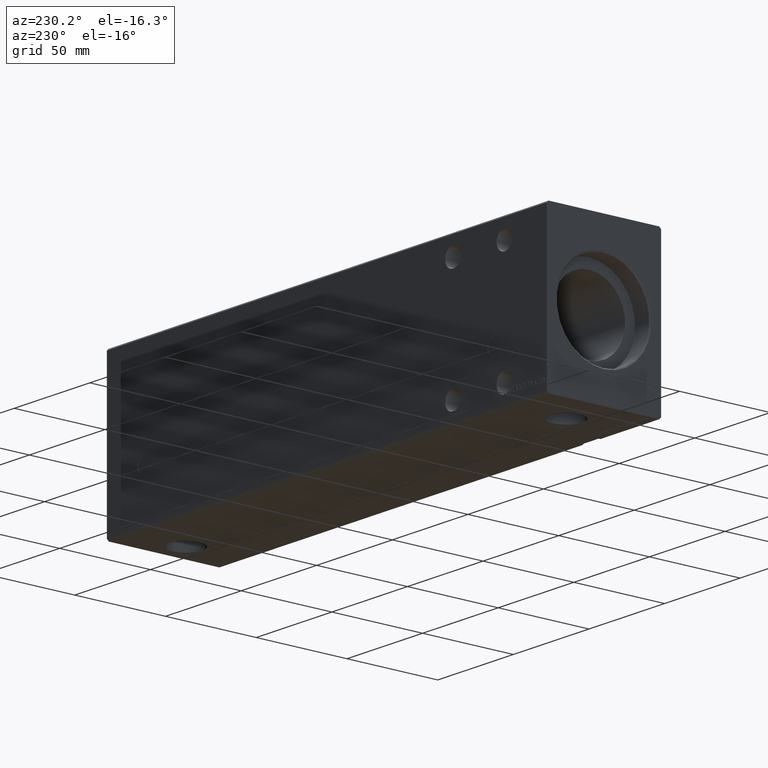
[diagram: clean part render]
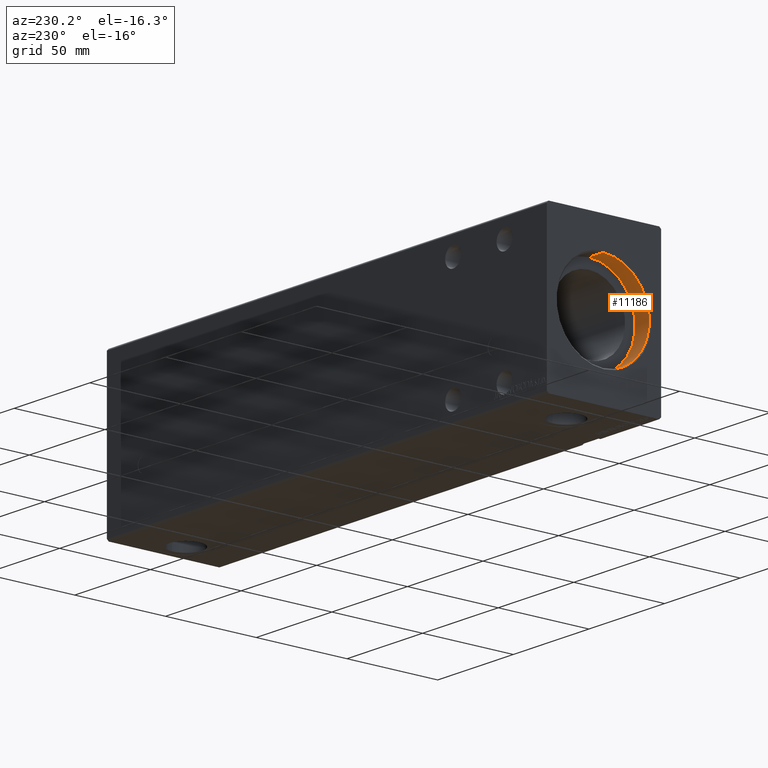
[diagram: same view with one face highlighted and labeled with its STEP entity id]
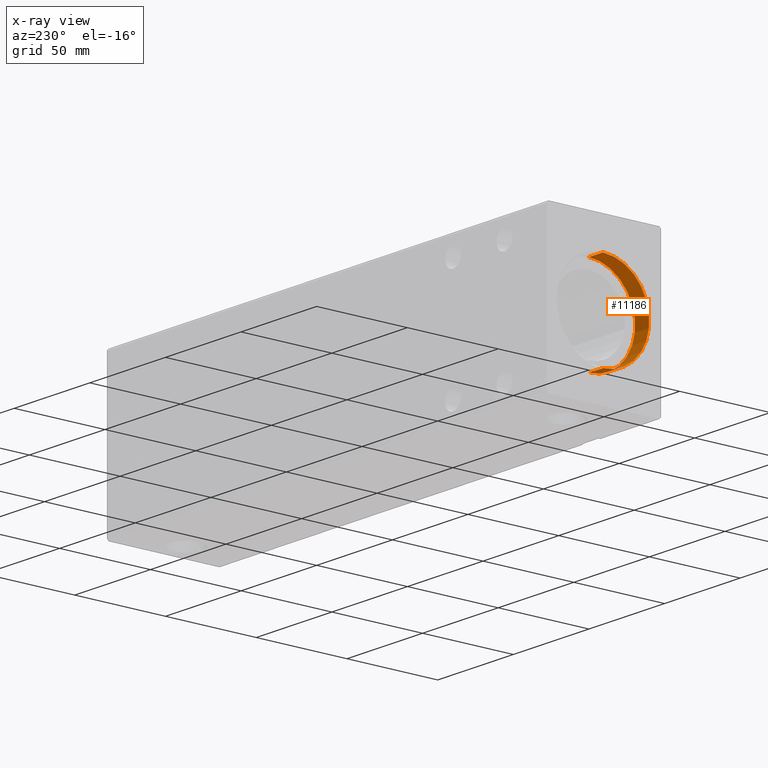
[diagram: x-ray of the same camera — body ghosted, the highlighted face saturated]
A machine part, auxiliary view. The second image highlights one B-rep face of the part: STEP entity #11186.
The next image is the same camera in x-ray: the body ghosted, the highlighted face saturated — about 0% of this face is hidden behind the body in this view.
In plain terms, the highlighted cylindrical surface (partial cylindrical patch) has radius 25.5 mm, axis along (-1, -0, -0).
Its self-contained STEP definition (entity closure, byte-faithful):
#396 = CARTESIAN_POINT ( 'NONE',  ( 10.00000000000000000, 3.122849337825750222E-15, -25.50000000000000000 ) ) ;
#895 = DIRECTION ( 'NONE',  ( -1.000000000000000000, 0.000000000000000000, 0.000000000000000000 ) ) ;
#1277 = DIRECTION ( 'NONE',  ( -1.000000000000000000, -0.000000000000000000, -0.000000000000000000 ) ) ;
#1317 = CIRCLE ( 'NONE', #1966, 25.50000000000000000 ) ;
#1966 = AXIS2_PLACEMENT_3D ( 'NONE', #13133, #895, #23253 ) ;
#4004 = EDGE_LOOP ( 'NONE', ( #13845, #25209, #38049, #14888 ) ) ;
#4886 = DIRECTION ( 'NONE',  ( 0.000000000000000000, 0.000000000000000000, 1.000000000000000000 ) ) ;
#5194 = CARTESIAN_POINT ( 'NONE',  ( 10.00000000000000000, 0.000000000000000000, 25.50000000000000000 ) ) ;
#5979 = DIRECTION ( 'NONE',  ( 0.000000000000000000, 0.000000000000000000, -1.000000000000000000 ) ) ;
#8648 = AXIS2_PLACEMENT_3D ( 'NONE', #21218, #37162, #4886 ) ;
#11186 = ADVANCED_FACE ( 'NONE', ( #12128 ), #18321, .F. ) ;
#12128 = FACE_OUTER_BOUND ( 'NONE', #4004, .T. ) ;
#12496 = VERTEX_POINT ( 'NONE', #5194 ) ;
#12641 = VECTOR ( 'NONE', #31501, 1000.000000000000000 ) ;
#12883 = CARTESIAN_POINT ( 'NONE',  ( 10.00000000000000000, 3.122849337825750222E-15, -25.50000000000000000 ) ) ;
#12987 = CARTESIAN_POINT ( 'NONE',  ( 0.7000000000000061728, 0.000000000000000000, 25.50000000000000000 ) ) ;
#13133 = CARTESIAN_POINT ( 'NONE',  ( 10.00000000000000000, 0.000000000000000000, 0.000000000000000000 ) ) ;
#13845 = ORIENTED_EDGE ( 'NONE', *, *, #29887, .F. ) ;
#14870 = VECTOR ( 'NONE', #1277, 1000.000000000000000 ) ;
#14888 = ORIENTED_EDGE ( 'NONE', *, *, #23705, .F. ) ;
#17225 = CARTESIAN_POINT ( 'NONE',  ( 10.00000000000000000, 0.000000000000000000, 25.50000000000000000 ) ) ;
#17439 = LINE ( 'NONE', #17225, #14870 ) ;
#18321 = CYLINDRICAL_SURFACE ( 'NONE', #8648, 25.50000000000000000 ) ;
#20627 = EDGE_CURVE ( 'NONE', #39433, #24156, #38533, .T. ) ;
#21218 = CARTESIAN_POINT ( 'NONE',  ( 10.00000000000000000, 0.000000000000000000, 0.000000000000000000 ) ) ;
#21326 = AXIS2_PLACEMENT_3D ( 'NONE', #21707, #28325, #5979 ) ;
#21707 = CARTESIAN_POINT ( 'NONE',  ( 0.7000000000000061728, 0.000000000000000000, 0.000000000000000000 ) ) ;
#23253 = DIRECTION ( 'NONE',  ( 0.000000000000000000, 0.000000000000000000, 1.000000000000000000 ) ) ;
#23705 = EDGE_CURVE ( 'NONE', #12496, #24156, #17439, .T. ) ;
#24156 = VERTEX_POINT ( 'NONE', #12987 ) ;
#24485 = CARTESIAN_POINT ( 'NONE',  ( 0.7000000000000061728, 3.122849337825750222E-15, -25.50000000000000000 ) ) ;
#24882 = LINE ( 'NONE', #12883, #12641 ) ;
#25209 = ORIENTED_EDGE ( 'NONE', *, *, #32777, .T. ) ;
#28325 = DIRECTION ( 'NONE',  ( -1.000000000000000000, 0.000000000000000000, 0.000000000000000000 ) ) ;
#29887 = EDGE_CURVE ( 'NONE', #40482, #12496, #1317, .T. ) ;
#31501 = DIRECTION ( 'NONE',  ( -1.000000000000000000, -0.000000000000000000, -0.000000000000000000 ) ) ;
#32777 = EDGE_CURVE ( 'NONE', #40482, #39433, #24882, .T. ) ;
#37162 = DIRECTION ( 'NONE',  ( -1.000000000000000000, -0.000000000000000000, -0.000000000000000000 ) ) ;
#38049 = ORIENTED_EDGE ( 'NONE', *, *, #20627, .T. ) ;
#38533 = CIRCLE ( 'NONE', #21326, 25.50000000000000000 ) ;
#39433 = VERTEX_POINT ( 'NONE', #24485 ) ;
#40482 = VERTEX_POINT ( 'NONE', #396 ) ;